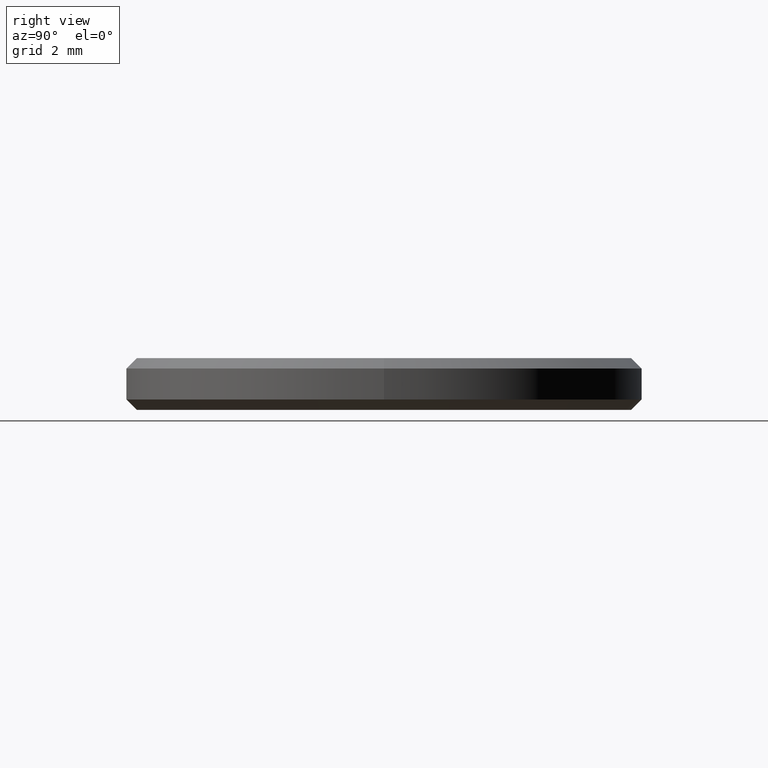
[diagram: clean part render]
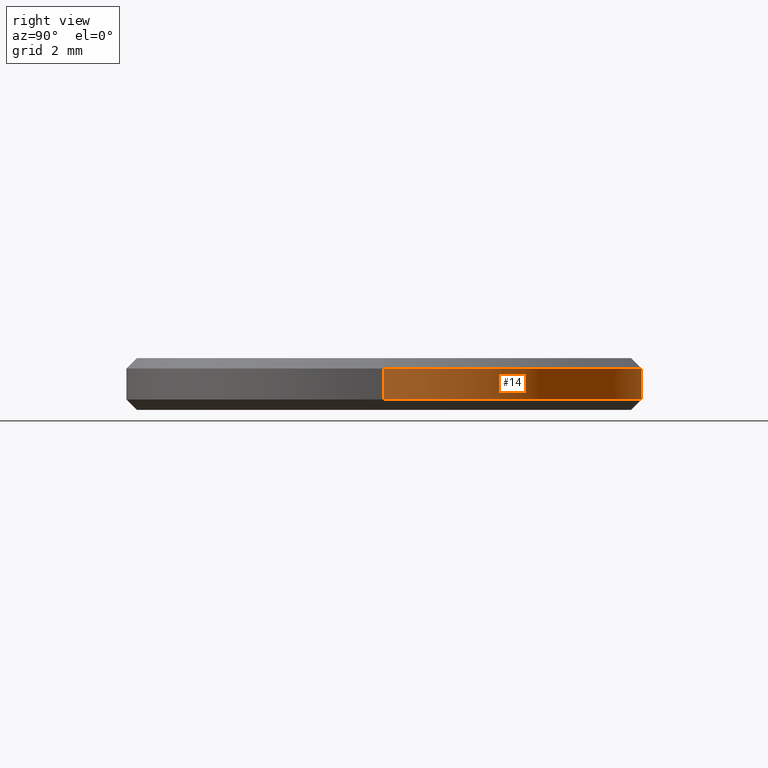
[diagram: same view with one face highlighted and labeled with its STEP entity id]
A machine part, right view. The second image highlights one B-rep face of the part: STEP entity #14.
In plain terms, the highlighted cylindrical surface (partial cylindrical patch) has radius 5 mm, axis along (-0, -0, -1).
Its self-contained STEP definition (entity closure, byte-faithful):
#11 = VECTOR ( 'NONE', #219, 1000.000000000000000 ) ;
#14 = ADVANCED_FACE ( 'NONE', ( #15 ), #109, .T. ) ;
#15 = FACE_OUTER_BOUND ( 'NONE', #187, .T. ) ;
#16 = DIRECTION ( 'NONE',  ( -1.000000000000000000, 0.000000000000000000, 0.000000000000000000 ) ) ;
#18 = CARTESIAN_POINT ( 'NONE',  ( 0.000000000000000000, 0.000000000000000000, 0.1999999999999996503 ) ) ;
#25 = AXIS2_PLACEMENT_3D ( 'NONE', #210, #94, #149 ) ;
#33 = AXIS2_PLACEMENT_3D ( 'NONE', #181, #237, #16 ) ;
#38 = EDGE_CURVE ( 'NONE', #129, #235, #196, .T. ) ;
#39 = CARTESIAN_POINT ( 'NONE',  ( 5.000000000000000000, 6.123233995736766282E-16, 0.8000000000000012657 ) ) ;
#44 = EDGE_CURVE ( 'NONE', #235, #84, #153, .T. ) ;
#74 = ORIENTED_EDGE ( 'NONE', *, *, #209, .T. ) ;
#84 = VERTEX_POINT ( 'NONE', #143 ) ;
#88 = AXIS2_PLACEMENT_3D ( 'NONE', #18, #184, #148 ) ;
#94 = DIRECTION ( 'NONE',  ( 0.000000000000000000, 0.000000000000000000, -1.000000000000000000 ) ) ;
#102 = DIRECTION ( 'NONE',  ( -0.000000000000000000, -0.000000000000000000, -1.000000000000000000 ) ) ;
#104 = EDGE_CURVE ( 'NONE', #191, #84, #197, .T. ) ;
#109 = CYLINDRICAL_SURFACE ( 'NONE', #33, 5.000000000000000000 ) ;
#113 = ORIENTED_EDGE ( 'NONE', *, *, #38, .T. ) ;
#114 = CARTESIAN_POINT ( 'NONE',  ( 5.000000000000000000, 6.123233995736766282E-16, 0.1999999999999996503 ) ) ;
#129 = VERTEX_POINT ( 'NONE', #39 ) ;
#132 = ORIENTED_EDGE ( 'NONE', *, *, #104, .F. ) ;
#143 = CARTESIAN_POINT ( 'NONE',  ( -5.000000000000000000, 0.000000000000000000, 0.1999999999999996503 ) ) ;
#148 = DIRECTION ( 'NONE',  ( 1.000000000000000000, 0.000000000000000000, 0.000000000000000000 ) ) ;
#149 = DIRECTION ( 'NONE',  ( 1.000000000000000000, 0.000000000000000000, 0.000000000000000000 ) ) ;
#153 = CIRCLE ( 'NONE', #88, 5.000000000000000000 ) ;
#159 = CIRCLE ( 'NONE', #25, 5.000000000000000000 ) ;
#163 = CARTESIAN_POINT ( 'NONE',  ( 5.000000000000000000, 6.123233995736766282E-16, 1.000000000000000000 ) ) ;
#171 = VECTOR ( 'NONE', #102, 1000.000000000000000 ) ;
#173 = CARTESIAN_POINT ( 'NONE',  ( -5.000000000000000000, 0.000000000000000000, 1.000000000000000000 ) ) ;
#181 = CARTESIAN_POINT ( 'NONE',  ( 0.000000000000000000, 0.000000000000000000, 1.000000000000000000 ) ) ;
#183 = ORIENTED_EDGE ( 'NONE', *, *, #44, .T. ) ;
#184 = DIRECTION ( 'NONE',  ( -0.000000000000000000, -0.000000000000000000, 1.000000000000000000 ) ) ;
#187 = EDGE_LOOP ( 'NONE', ( #74, #113, #183, #132 ) ) ;
#190 = CARTESIAN_POINT ( 'NONE',  ( -5.000000000000000000, 0.000000000000000000, 0.8000000000000012657 ) ) ;
#191 = VERTEX_POINT ( 'NONE', #190 ) ;
#196 = LINE ( 'NONE', #163, #11 ) ;
#197 = LINE ( 'NONE', #173, #171 ) ;
#209 = EDGE_CURVE ( 'NONE', #191, #129, #159, .T. ) ;
#210 = CARTESIAN_POINT ( 'NONE',  ( 0.000000000000000000, 0.000000000000000000, 0.8000000000000012657 ) ) ;
#219 = DIRECTION ( 'NONE',  ( -0.000000000000000000, -0.000000000000000000, -1.000000000000000000 ) ) ;
#235 = VERTEX_POINT ( 'NONE', #114 ) ;
#237 = DIRECTION ( 'NONE',  ( -0.000000000000000000, -0.000000000000000000, -1.000000000000000000 ) ) ;